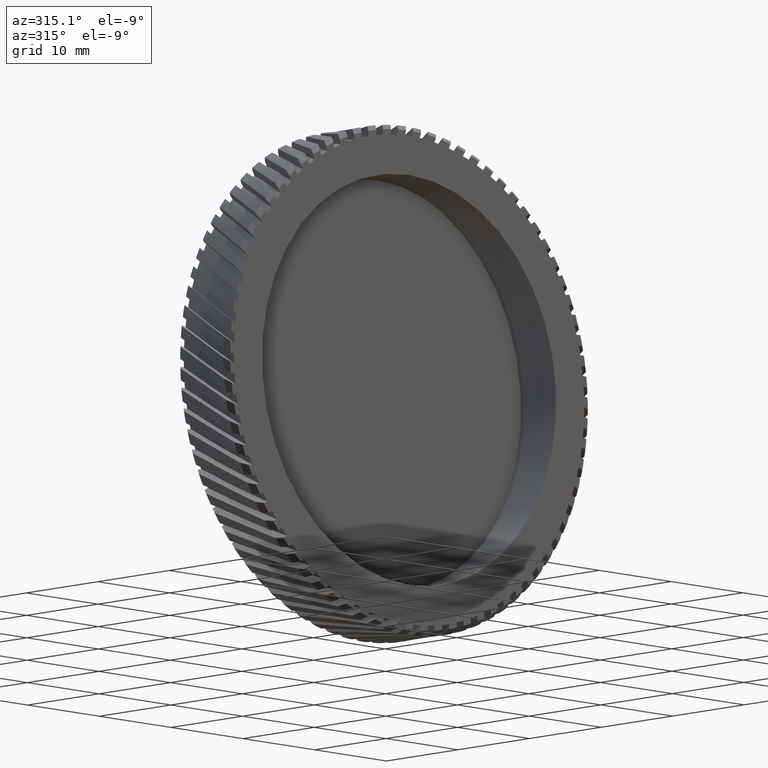
[diagram: clean part render]
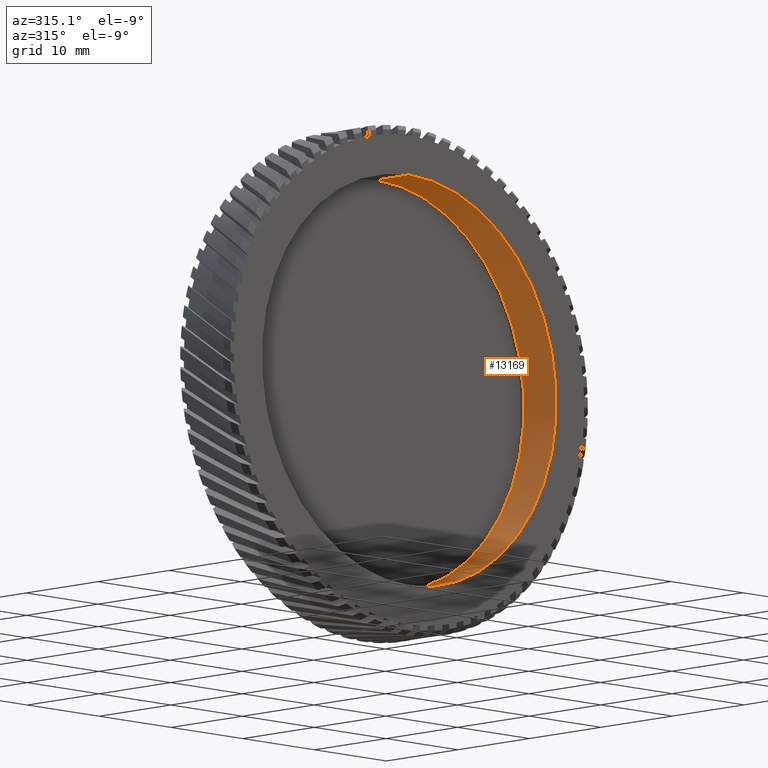
[diagram: same view with one face highlighted and labeled with its STEP entity id]
A machine part, auxiliary view. The second image highlights one B-rep face of the part: STEP entity #13169.
In plain terms, the highlighted cylindrical surface (partial cylindrical patch) has radius 20.5 mm, axis along (-0, 1, -0).
Its self-contained STEP definition (entity closure, byte-faithful):
#760 = DIRECTION ( 'NONE',  ( -0.0000000000000000000, 1.000000000000000000, -0.0000000000000000000 ) ) ;
#1747 = EDGE_CURVE ( 'NONE', #14461, #5469, #1891, .T. ) ;
#1891 = LINE ( 'NONE', #5910, #13707 ) ;
#2236 = DIRECTION ( 'NONE',  ( -0.0000000000000000000, 1.000000000000000000, -0.0000000000000000000 ) ) ;
#2266 = AXIS2_PLACEMENT_3D ( 'NONE', #8813, #4859, #5079 ) ;
#2381 = VERTEX_POINT ( 'NONE', #13790 ) ;
#3930 = CIRCLE ( 'NONE', #11241, 20.50000000000000700 ) ;
#4800 = DIRECTION ( 'NONE',  ( -0.0000000000000000000, 1.000000000000000000, -0.0000000000000000000 ) ) ;
#4859 = DIRECTION ( 'NONE',  ( -0.0000000000000000000, 1.000000000000000000, -0.0000000000000000000 ) ) ;
#5079 = DIRECTION ( 'NONE',  ( 0.0000000000000000000, 0.0000000000000000000, 1.000000000000000000 ) ) ;
#5469 = VERTEX_POINT ( 'NONE', #9768 ) ;
#5910 = CARTESIAN_POINT ( 'NONE',  ( 0.0000000000000000000, 46.02073106022621100, 20.50000000000000700 ) ) ;
#6269 = CARTESIAN_POINT ( 'NONE',  ( 0.0000000000000000000, 46.02073106022621100, 0.0000000000000000000 ) ) ;
#6279 = CARTESIAN_POINT ( 'NONE',  ( 2.510525938252074900E-015, -13.33088448223191600, -20.50000000000000700 ) ) ;
#6331 = EDGE_LOOP ( 'NONE', ( #14414, #10519, #6971, #15715 ) ) ;
#6971 = ORIENTED_EDGE ( 'NONE', *, *, #1747, .T. ) ;
#7230 = DIRECTION ( 'NONE',  ( 0.0000000000000000000, 0.0000000000000000000, 1.000000000000000000 ) ) ;
#8039 = EDGE_CURVE ( 'NONE', #14461, #10164, #13063, .T. ) ;
#8525 = CARTESIAN_POINT ( 'NONE',  ( 2.510525938252074900E-015, 46.02073106022621100, -20.50000000000000700 ) ) ;
#8813 = CARTESIAN_POINT ( 'NONE',  ( 0.0000000000000000000, -13.33088448223191600, 0.0000000000000000000 ) ) ;
#9715 = VECTOR ( 'NONE', #2236, 1000.000000000000000 ) ;
#9768 = CARTESIAN_POINT ( 'NONE',  ( 0.0000000000000000000, -8.830884482231917700, 20.50000000000000700 ) ) ;
#10164 = VERTEX_POINT ( 'NONE', #6279 ) ;
#10487 = CYLINDRICAL_SURFACE ( 'NONE', #12171, 20.50000000000000700 ) ;
#10519 = ORIENTED_EDGE ( 'NONE', *, *, #8039, .F. ) ;
#10892 = LINE ( 'NONE', #8525, #9715 ) ;
#11241 = AXIS2_PLACEMENT_3D ( 'NONE', #15753, #760, #7230 ) ;
#12015 = CARTESIAN_POINT ( 'NONE',  ( 0.0000000000000000000, -13.33088448223191600, 20.50000000000000700 ) ) ;
#12171 = AXIS2_PLACEMENT_3D ( 'NONE', #6269, #13782, #12555 ) ;
#12555 = DIRECTION ( 'NONE',  ( 0.0000000000000000000, 0.0000000000000000000, 1.000000000000000000 ) ) ;
#12999 = EDGE_CURVE ( 'NONE', #10164, #2381, #10892, .T. ) ;
#13063 = CIRCLE ( 'NONE', #2266, 20.50000000000000700 ) ;
#13169 = ADVANCED_FACE ( 'NONE', ( #13452 ), #10487, .F. ) ;
#13452 = FACE_OUTER_BOUND ( 'NONE', #6331, .T. ) ;
#13707 = VECTOR ( 'NONE', #4800, 1000.000000000000000 ) ;
#13782 = DIRECTION ( 'NONE',  ( -0.0000000000000000000, 1.000000000000000000, -0.0000000000000000000 ) ) ;
#13790 = CARTESIAN_POINT ( 'NONE',  ( 2.510525938252074900E-015, -8.830884482231917700, -20.50000000000000700 ) ) ;
#14414 = ORIENTED_EDGE ( 'NONE', *, *, #12999, .F. ) ;
#14461 = VERTEX_POINT ( 'NONE', #12015 ) ;
#15516 = EDGE_CURVE ( 'NONE', #5469, #2381, #3930, .T. ) ;
#15715 = ORIENTED_EDGE ( 'NONE', *, *, #15516, .T. ) ;
#15753 = CARTESIAN_POINT ( 'NONE',  ( 0.0000000000000000000, -8.830884482231917700, 0.0000000000000000000 ) ) ;